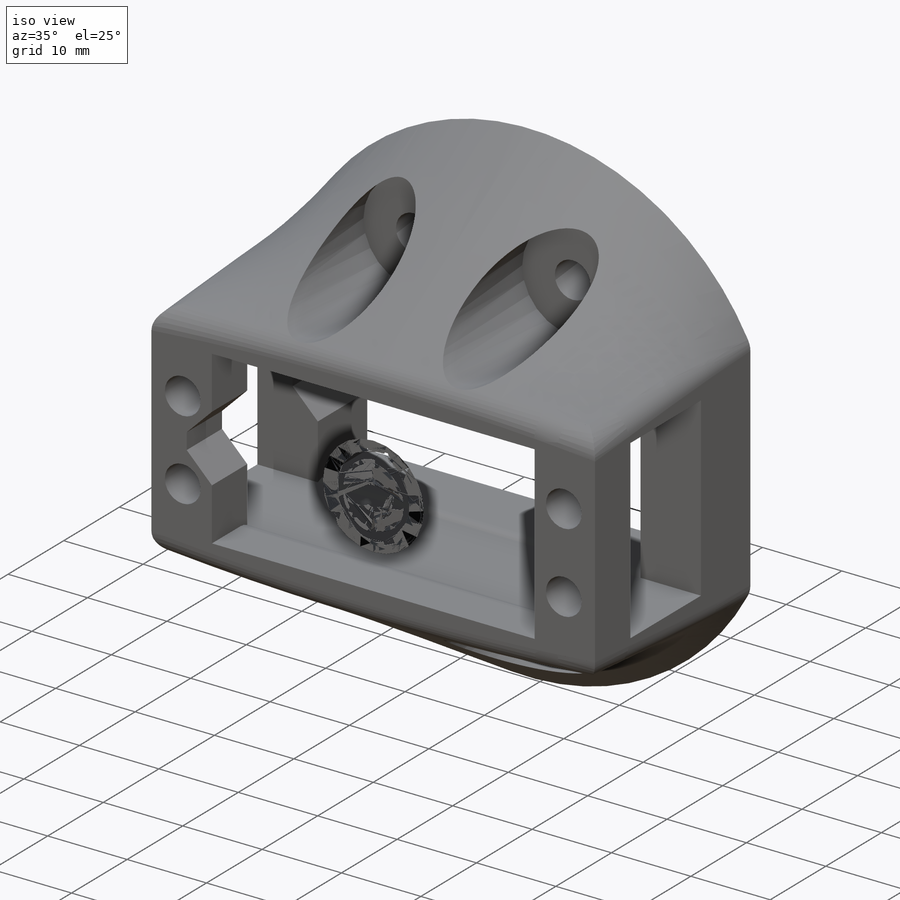
[diagram: iso view]
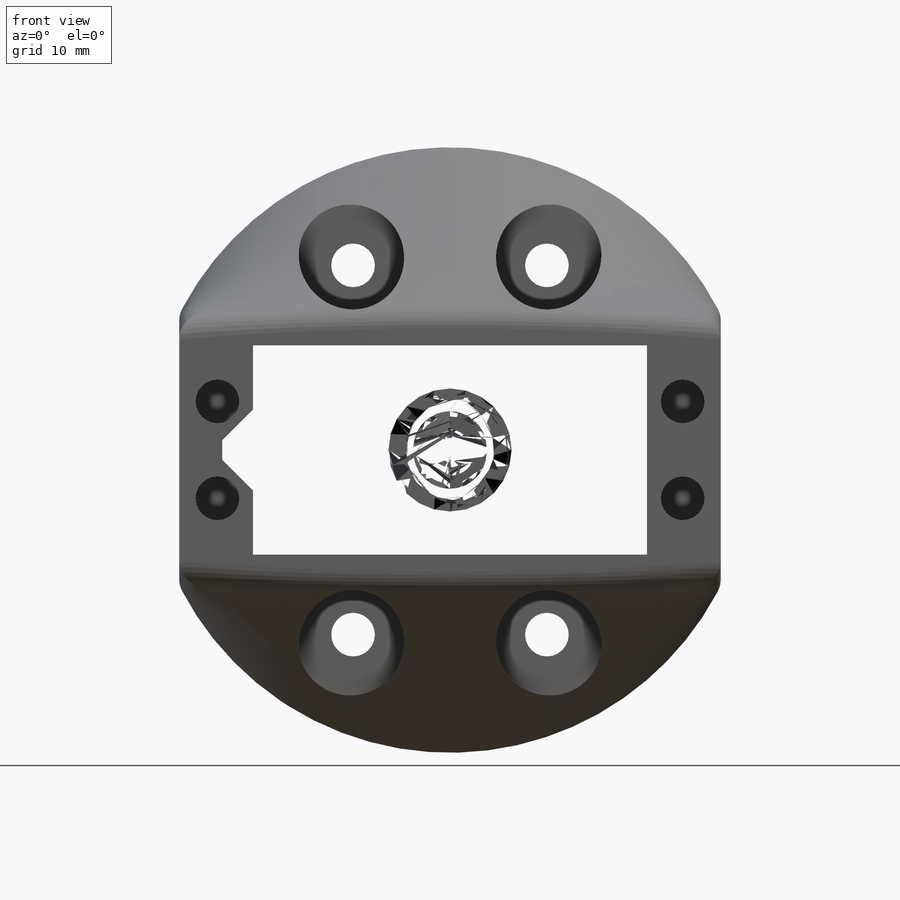
[diagram: front view]
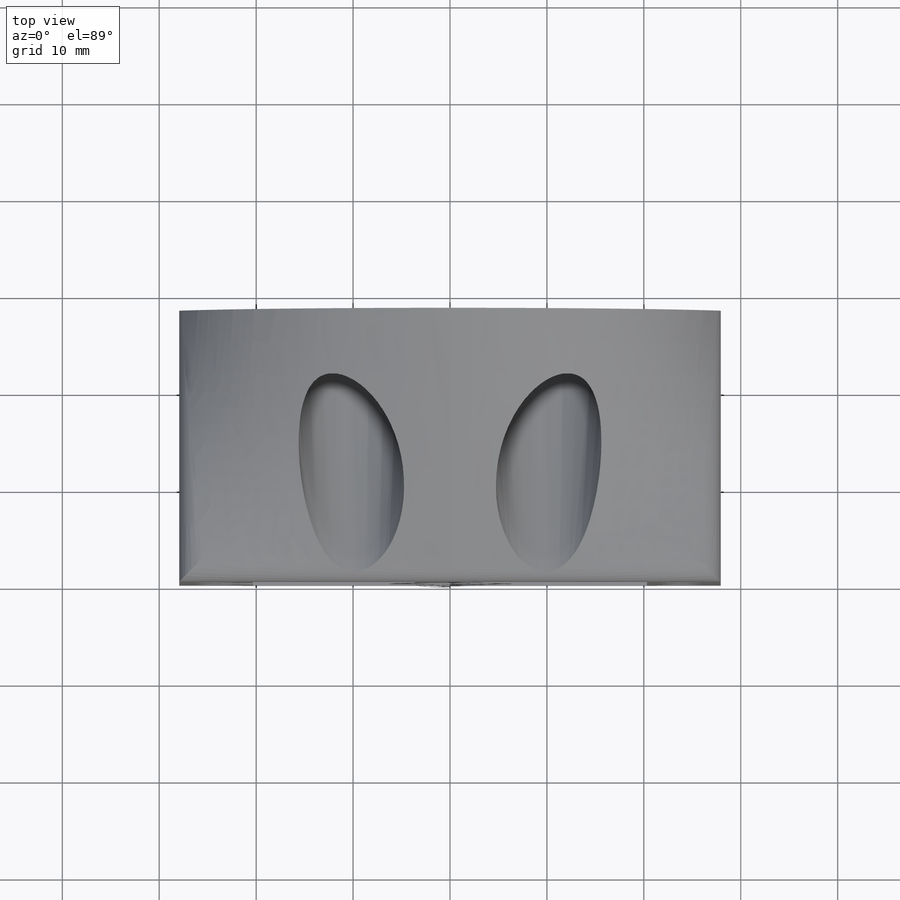
[diagram: top view]
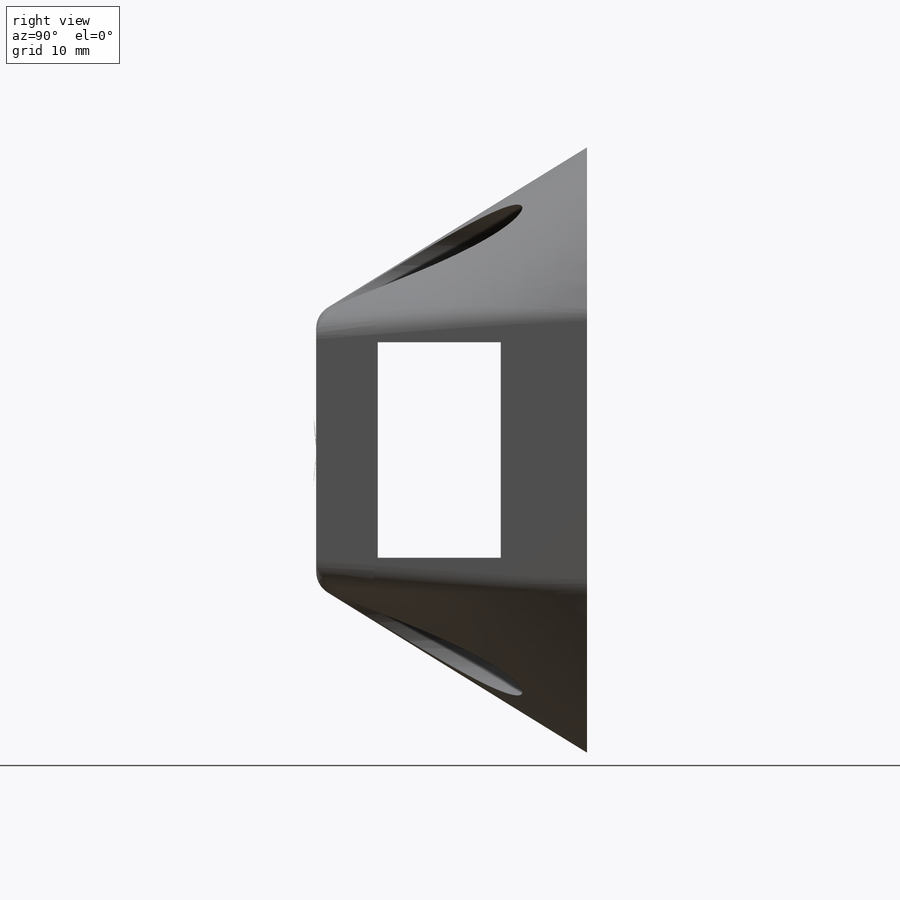
[diagram: right view]
SOLIDWORKS PART (.sldprt)
format: sldprt  version: not decoded by parser v0  size: 531,456 bytes
history: native  units: mm
features: sketch x8, cut_extrude x6, plane x2, material x1, fillet x1 (+13 scaffold rows collapsed)
feature tree (31):
  scaffold x13  (default folders/planes/origin — collapsed)
  material  "ABS"
  sketch  "Sketch1"  dims[c1.D1=40.64mm c1.D2=50.8mm c1.D3=21.59mm c1.D4=25.4mm c2.D2=7.62mm c2.D4=3.175mm]
  plane  "Plane1"  Offset=27.94mm
  sketch  "Sketch2"
  cut_extrude  "Cut-Extrude1"  [1 undecoded]
  sketch  "Sketch1<4>"
  sketch  "Sketch3"  dims[D1=4.5mm D2=10.0mm D3=48.0mm]
  cut_extrude  "Cut-Extrude2"  Depth=6.35mm
  sketch  "Sketch4"  dims[D1=22.225mm D2=6.35mm D3=19.05mm]
  cut_extrude  "Cut-Extrude3"  [1 undecoded]
  sketch  "Sketch5"  dims[c1.D3=4.5mm c1.D1=14.0mm c1.D2=38.1mm c2.D3=20.0mm]
  cut_extrude  "Cut-Extrude4"  [1 undecoded]
  plane  "Plane2"  Offset=6.35mm
  sketch  "Sketch6"  dims[D1=12.7mm]
  cut_extrude  "Cut-Extrude5"  [1 undecoded]
  fillet  "Fillet1"  Radius=2.54mm
  sketch  "Sketch7"  dims[c1.D1=3.175mm c1.D2=~2.261749mm c2.D2=135.0deg c2.D3=3.175mm]
  cut_extrude  "Cut-Extrude6"  [1 undecoded]
decode coverage: 8 of 15 modeling features carry decoded parameters
note: ~ marks probable driven/reference dimensions
note: 5 parameter values undecoded
summary: no parameter record found for 5 features
note: suppression state not decoded; provenance and decode notes live in map.json
